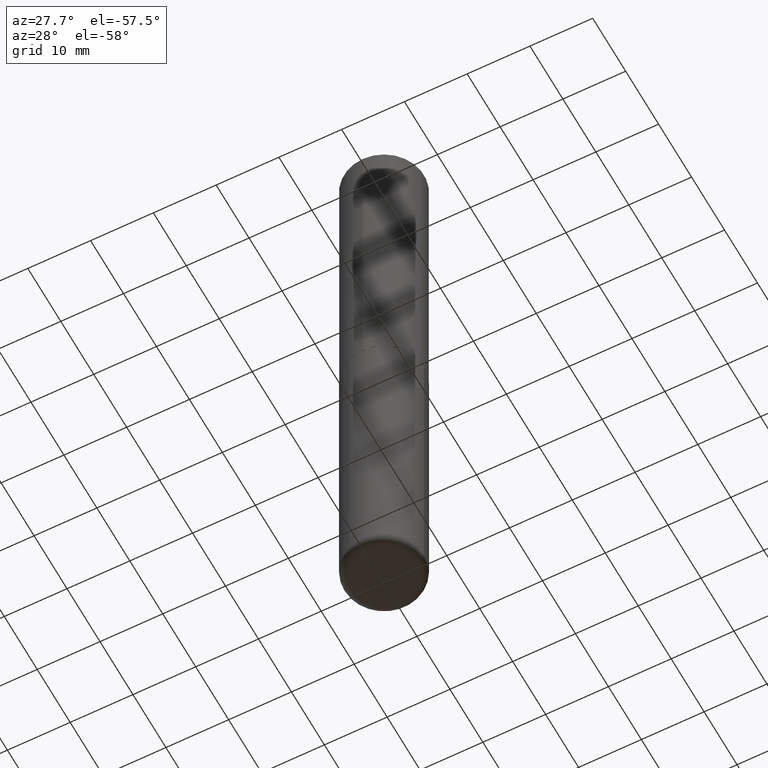
[diagram: clean part render]
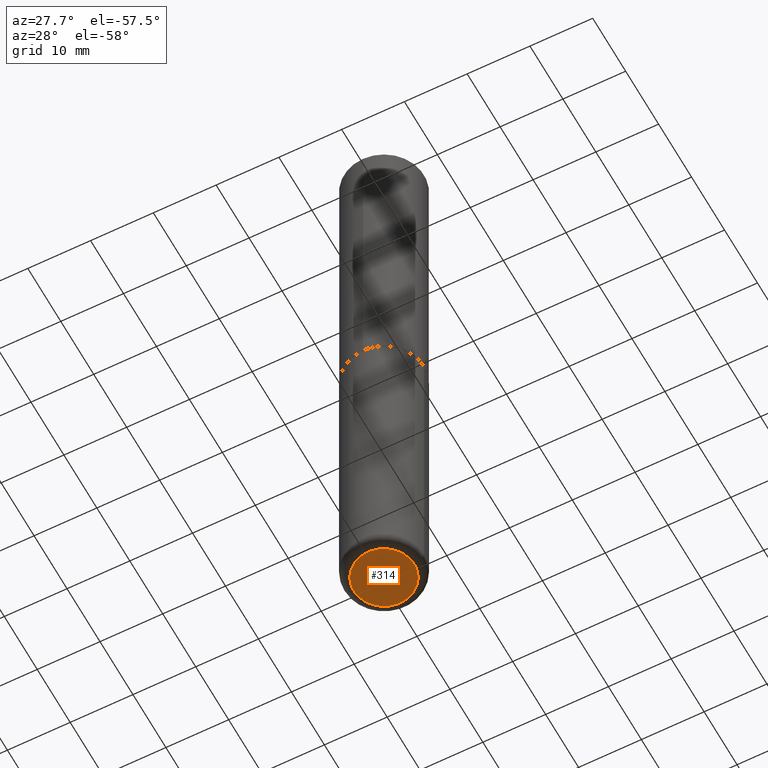
[diagram: same view with one face highlighted and labeled with its STEP entity id]
A machine part, auxiliary view. The second image highlights one B-rep face of the part: STEP entity #314.
In plain terms, the highlighted planar face has unit normal (0, -0, -1).
Its self-contained STEP definition (entity closure, byte-faithful):
#28 = CARTESIAN_POINT ( 'NONE',  ( 0.1899999999999999745, -1.529268826413297395E-14, -4.000000000000000888 ) ) ;
#44 = EDGE_CURVE ( 'NONE', #400, #82, #57, .T. ) ;
#45 = ORIENTED_EDGE ( 'NONE', *, *, #44, .F. ) ;
#51 = CIRCLE ( 'NONE', #403, 0.1899999999999999745 ) ;
#57 = CIRCLE ( 'NONE', #111, 0.1899999999999999745 ) ;
#71 = AXIS2_PLACEMENT_3D ( 'NONE', #333, #203, #139 ) ;
#72 = FACE_OUTER_BOUND ( 'NONE', #171, .T. ) ;
#82 = VERTEX_POINT ( 'NONE', #28 ) ;
#111 = AXIS2_PLACEMENT_3D ( 'NONE', #416, #122, #413 ) ;
#122 = DIRECTION ( 'NONE',  ( -2.445468806185136597E-29, 3.491481338843145583E-15, 1.000000000000000000 ) ) ;
#139 = DIRECTION ( 'NONE',  ( -1.000000000000000000, 6.982962677686265922E-15, -4.876176775795935793E-29 ) ) ;
#144 = DIRECTION ( 'NONE',  ( -2.445468806185136597E-29, 3.491481338843145583E-15, 1.000000000000000000 ) ) ;
#149 = CARTESIAN_POINT ( 'NONE',  ( 9.781875224740547508E-29, -1.396592535537258391E-14, -4.000000000000000888 ) ) ;
#151 = ORIENTED_EDGE ( 'NONE', *, *, #410, .F. ) ;
#171 = EDGE_LOOP ( 'NONE', ( #151, #45 ) ) ;
#198 = PLANE ( 'NONE',  #71 ) ;
#203 = DIRECTION ( 'NONE',  ( 2.438088387897960049E-29, -3.491481338843145188E-15, -1.000000000000000000 ) ) ;
#241 = CARTESIAN_POINT ( 'NONE',  ( -0.1899999999999999745, -1.229798689653506874E-14, -4.000000000000000888 ) ) ;
#314 = ADVANCED_FACE ( 'NONE', ( #72 ), #198, .T. ) ;
#333 = CARTESIAN_POINT ( 'NONE',  ( 1.749709927532266759E-29, -2.546844322343264338E-14, -4.000000000000000000 ) ) ;
#371 = DIRECTION ( 'NONE',  ( 1.000000000000000000, -6.982962677686261977E-15, 0.000000000000000000 ) ) ;
#400 = VERTEX_POINT ( 'NONE', #241 ) ;
#403 = AXIS2_PLACEMENT_3D ( 'NONE', #149, #144, #371 ) ;
#410 = EDGE_CURVE ( 'NONE', #82, #400, #51, .T. ) ;
#413 = DIRECTION ( 'NONE',  ( 1.000000000000000000, -6.982962677686261977E-15, 0.000000000000000000 ) ) ;
#416 = CARTESIAN_POINT ( 'NONE',  ( 9.781875224740547508E-29, -1.396592535537258391E-14, -4.000000000000000888 ) ) ;